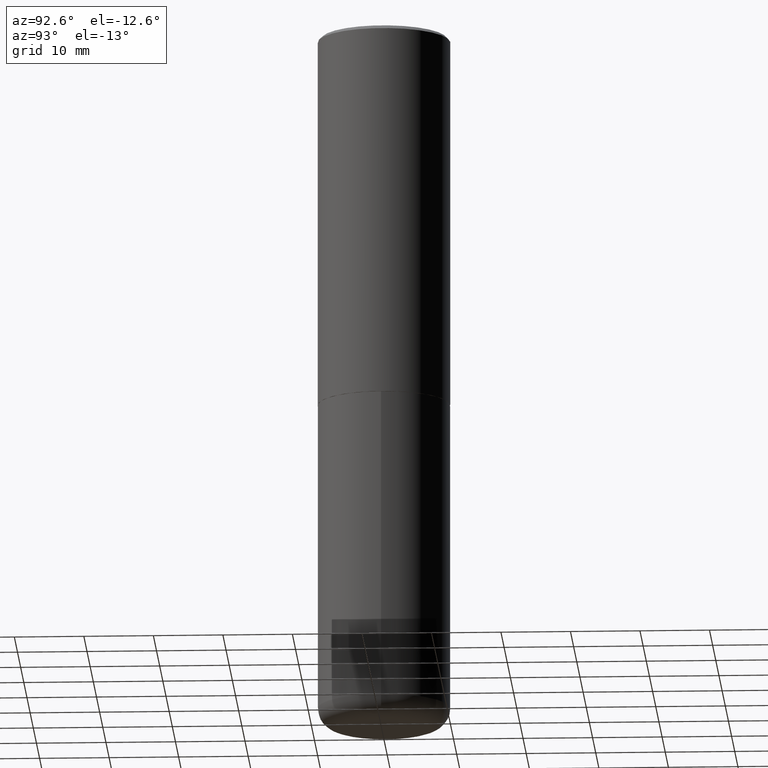
[diagram: clean part render]
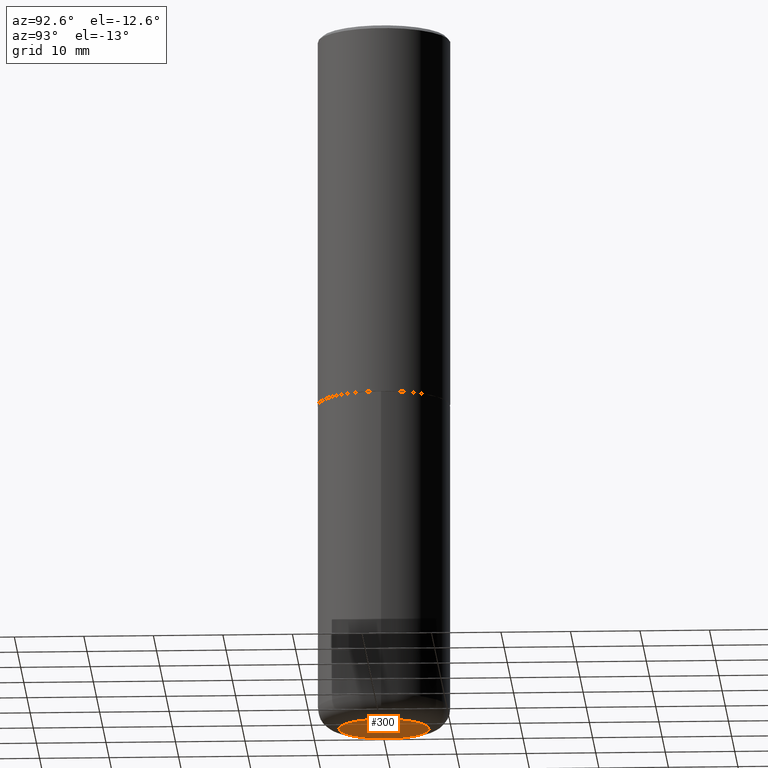
[diagram: same view with one face highlighted and labeled with its STEP entity id]
A machine part, auxiliary view. The second image highlights one B-rep face of the part: STEP entity #300.
In plain terms, the highlighted planar face has unit normal (0, -0, -1).
Its self-contained STEP definition (entity closure, byte-faithful):
#6 = EDGE_LOOP ( 'NONE', ( #59, #84 ) ) ;
#25 = DIRECTION ( 'NONE',  ( -2.445468806185136597E-29, 3.491481338843145583E-15, 1.000000000000000000 ) ) ;
#42 = DIRECTION ( 'NONE',  ( 2.438088387897960049E-29, -3.491481338843145188E-15, -1.000000000000000000 ) ) ;
#56 = CARTESIAN_POINT ( 'NONE',  ( 0.2550000000000000044, -1.574658083818258381E-14, -4.000000000000000888 ) ) ;
#59 = ORIENTED_EDGE ( 'NONE', *, *, #364, .F. ) ;
#84 = ORIENTED_EDGE ( 'NONE', *, *, #370, .F. ) ;
#94 = AXIS2_PLACEMENT_3D ( 'NONE', #231, #25, #293 ) ;
#112 = VERTEX_POINT ( 'NONE', #56 ) ;
#131 = CARTESIAN_POINT ( 'NONE',  ( -0.2550000000000000044, -1.151822685739767881E-14, -4.000000000000000888 ) ) ;
#151 = VERTEX_POINT ( 'NONE', #131 ) ;
#154 = FACE_OUTER_BOUND ( 'NONE', #6, .T. ) ;
#158 = DIRECTION ( 'NONE',  ( -1.000000000000000000, 6.982962677686265922E-15, -4.876176775795935793E-29 ) ) ;
#175 = AXIS2_PLACEMENT_3D ( 'NONE', #193, #42, #158 ) ;
#193 = CARTESIAN_POINT ( 'NONE',  ( 3.797124611134382385E-29, -2.253642886490752288E-14, -4.000000000000000000 ) ) ;
#197 = PLANE ( 'NONE',  #175 ) ;
#211 = AXIS2_PLACEMENT_3D ( 'NONE', #326, #218, #223 ) ;
#218 = DIRECTION ( 'NONE',  ( -2.445468806185136597E-29, 3.491481338843145583E-15, 1.000000000000000000 ) ) ;
#223 = DIRECTION ( 'NONE',  ( 1.000000000000000000, -6.982962677686267499E-15, 0.000000000000000000 ) ) ;
#231 = CARTESIAN_POINT ( 'NONE',  ( 9.781875224740547508E-29, -1.396592535537258391E-14, -4.000000000000000888 ) ) ;
#258 = CIRCLE ( 'NONE', #211, 0.2550000000000000044 ) ;
#293 = DIRECTION ( 'NONE',  ( 1.000000000000000000, -6.982962677686267499E-15, 0.000000000000000000 ) ) ;
#300 = ADVANCED_FACE ( 'NONE', ( #154 ), #197, .T. ) ;
#326 = CARTESIAN_POINT ( 'NONE',  ( 9.781875224740547508E-29, -1.396592535537258391E-14, -4.000000000000000888 ) ) ;
#364 = EDGE_CURVE ( 'NONE', #112, #151, #416, .T. ) ;
#370 = EDGE_CURVE ( 'NONE', #151, #112, #258, .T. ) ;
#416 = CIRCLE ( 'NONE', #94, 0.2550000000000000044 ) ;